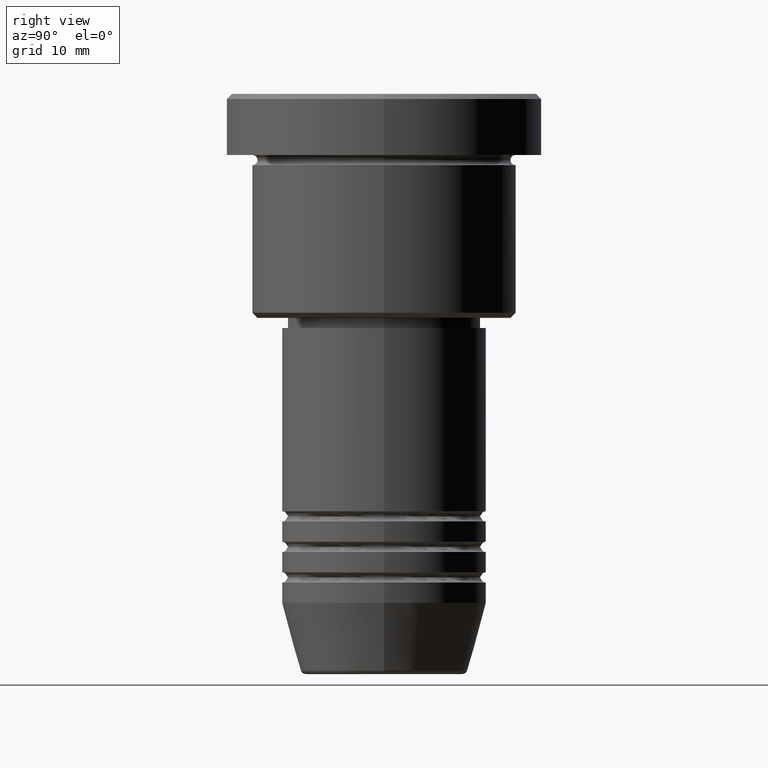
[diagram: clean part render]
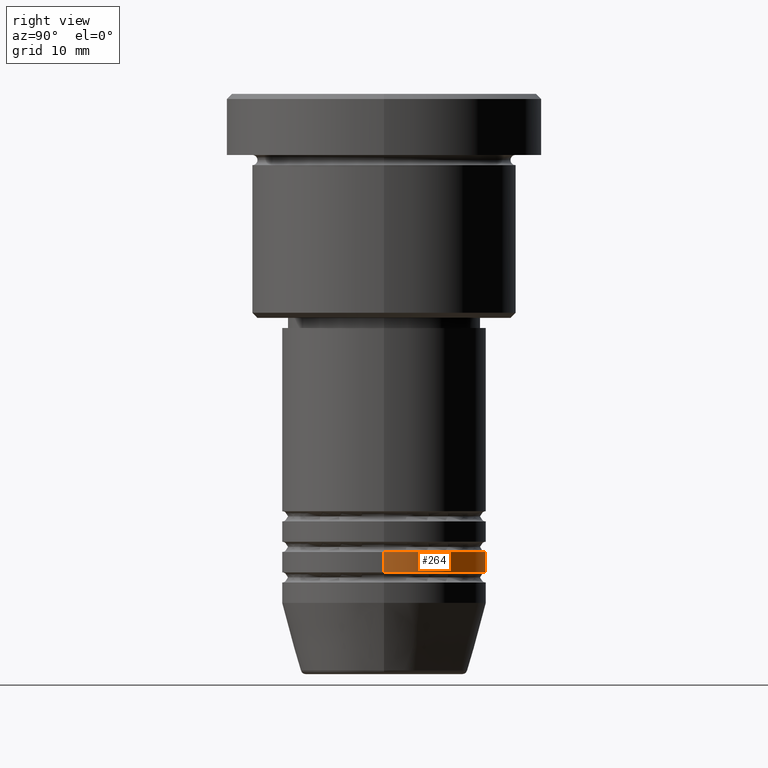
[diagram: same view with one face highlighted and labeled with its STEP entity id]
A machine part, right view. The second image highlights one B-rep face of the part: STEP entity #264.
In plain terms, the highlighted cylindrical surface (partial cylindrical patch) has radius 10 mm, axis along (-0, -0, 1).
Its self-contained STEP definition (entity closure, byte-faithful):
#20 = CARTESIAN_POINT ( 'NONE',  ( -10.00000000000000000, 1.224646799147353256E-15, -46.99999999999998579 ) ) ;
#64 = AXIS2_PLACEMENT_3D ( 'NONE', #267, #448, #536 ) ;
#100 = DIRECTION ( 'NONE',  ( -0.000000000000000000, -0.000000000000000000, 1.000000000000000000 ) ) ;
#117 = CIRCLE ( 'NONE', #64, 10.00000000000000000 ) ;
#159 = EDGE_CURVE ( 'NONE', #990, #513, #1087, .T. ) ;
#178 = DIRECTION ( 'NONE',  ( -0.000000000000000000, -0.000000000000000000, 1.000000000000000000 ) ) ;
#193 = DIRECTION ( 'NONE',  ( 1.000000000000000000, 0.000000000000000000, 0.000000000000000000 ) ) ;
#198 = CARTESIAN_POINT ( 'NONE',  ( 0.000000000000000000, 0.000000000000000000, -46.99999999999998579 ) ) ;
#206 = VERTEX_POINT ( 'NONE', #298 ) ;
#263 = LINE ( 'NONE', #719, #750 ) ;
#264 = ADVANCED_FACE ( 'NONE', ( #745 ), #1108, .T. ) ;
#267 = CARTESIAN_POINT ( 'NONE',  ( 0.000000000000000000, 0.000000000000000000, -44.99999999999998579 ) ) ;
#298 = CARTESIAN_POINT ( 'NONE',  ( 10.00000000000000000, 0.000000000000000000, -44.99999999999998579 ) ) ;
#307 = EDGE_LOOP ( 'NONE', ( #410, #598, #864, #695 ) ) ;
#364 = AXIS2_PLACEMENT_3D ( 'NONE', #666, #1029, #591 ) ;
#374 = CARTESIAN_POINT ( 'NONE',  ( 10.00000000000000000, 0.000000000000000000, 0.000000000000000000 ) ) ;
#410 = ORIENTED_EDGE ( 'NONE', *, *, #159, .T. ) ;
#448 = DIRECTION ( 'NONE',  ( -0.000000000000000000, -0.000000000000000000, 1.000000000000000000 ) ) ;
#513 = VERTEX_POINT ( 'NONE', #20 ) ;
#528 = VERTEX_POINT ( 'NONE', #947 ) ;
#536 = DIRECTION ( 'NONE',  ( 1.000000000000000000, 0.000000000000000000, 0.000000000000000000 ) ) ;
#554 = LINE ( 'NONE', #374, #960 ) ;
#591 = DIRECTION ( 'NONE',  ( 1.000000000000000000, 0.000000000000000000, 0.000000000000000000 ) ) ;
#598 = ORIENTED_EDGE ( 'NONE', *, *, #753, .T. ) ;
#644 = DIRECTION ( 'NONE',  ( -0.000000000000000000, -0.000000000000000000, 1.000000000000000000 ) ) ;
#666 = CARTESIAN_POINT ( 'NONE',  ( 0.000000000000000000, 0.000000000000000000, 0.000000000000000000 ) ) ;
#682 = EDGE_CURVE ( 'NONE', #990, #206, #554, .T. ) ;
#695 = ORIENTED_EDGE ( 'NONE', *, *, #682, .F. ) ;
#719 = CARTESIAN_POINT ( 'NONE',  ( -10.00000000000000000, 1.224646799147353256E-15, 0.000000000000000000 ) ) ;
#745 = FACE_OUTER_BOUND ( 'NONE', #307, .T. ) ;
#750 = VECTOR ( 'NONE', #644, 1000.000000000000000 ) ;
#753 = EDGE_CURVE ( 'NONE', #513, #528, #263, .T. ) ;
#846 = AXIS2_PLACEMENT_3D ( 'NONE', #198, #100, #193 ) ;
#864 = ORIENTED_EDGE ( 'NONE', *, *, #1022, .F. ) ;
#947 = CARTESIAN_POINT ( 'NONE',  ( -10.00000000000000000, 1.224646799147353256E-15, -44.99999999999998579 ) ) ;
#960 = VECTOR ( 'NONE', #178, 1000.000000000000000 ) ;
#990 = VERTEX_POINT ( 'NONE', #1077 ) ;
#1022 = EDGE_CURVE ( 'NONE', #206, #528, #117, .T. ) ;
#1029 = DIRECTION ( 'NONE',  ( -0.000000000000000000, -0.000000000000000000, 1.000000000000000000 ) ) ;
#1077 = CARTESIAN_POINT ( 'NONE',  ( 10.00000000000000000, 0.000000000000000000, -46.99999999999998579 ) ) ;
#1087 = CIRCLE ( 'NONE', #846, 10.00000000000000000 ) ;
#1108 = CYLINDRICAL_SURFACE ( 'NONE', #364, 10.00000000000000000 ) ;